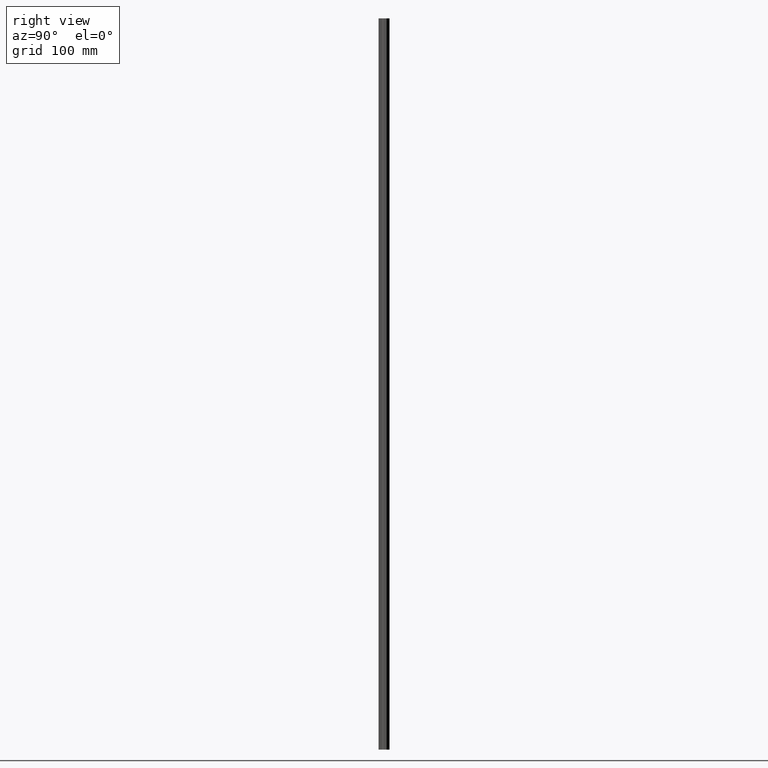
[diagram: clean part render]
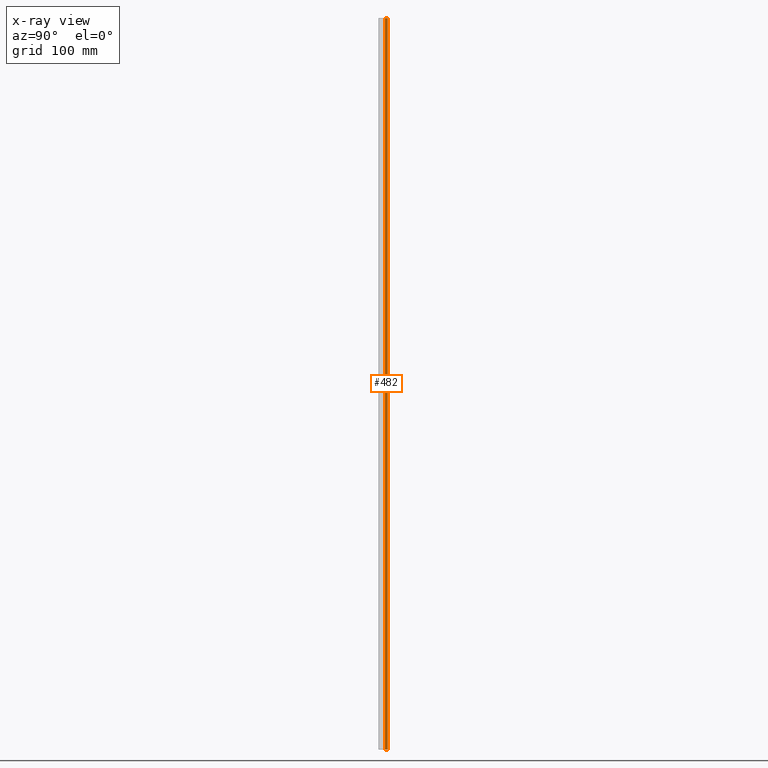
[diagram: x-ray — body ghosted, one internal face saturated and labeled with its STEP entity id]
A machine part, right view, then the same camera in x-ray: the body is ghosted and one INTERNAL B-rep face — a face not visible from any outside direction — is saturated and labeled: STEP entity #482.
In plain terms, the highlighted planar face has unit normal (-1, 0, 0).
Its self-contained STEP definition (entity closure, byte-faithful):
#7 = CARTESIAN_POINT ( 'NONE',  ( 3.850000000000000100, 12.78999999999999900, 0.0000000000000000000 ) ) ;
#45 = CARTESIAN_POINT ( 'NONE',  ( 3.850000000000000100, 9.000000000000001800, -1000.000000000000000 ) ) ;
#110 = ORIENTED_EDGE ( 'NONE', *, *, #1505, .T. ) ;
#135 = DIRECTION ( 'NONE',  ( 0.0000000000000000000, -1.000000000000000000, -0.0000000000000000000 ) ) ;
#219 = VERTEX_POINT ( 'NONE', #7 ) ;
#229 = AXIS2_PLACEMENT_3D ( 'NONE', #1383, #1502, #1654 ) ;
#397 = EDGE_LOOP ( 'NONE', ( #1384, #110, #1499, #1715 ) ) ;
#453 = VECTOR ( 'NONE', #1159, 1000.000000000000000 ) ;
#482 = ADVANCED_FACE ( 'NONE', ( #1074 ), #1805, .T. ) ;
#537 = DIRECTION ( 'NONE',  ( -0.0000000000000000000, -0.0000000000000000000, 1.000000000000000000 ) ) ;
#547 = VERTEX_POINT ( 'NONE', #1506 ) ;
#656 = CARTESIAN_POINT ( 'NONE',  ( 3.850000000000001000, 9.000000000000003600, -1000.000000000000000 ) ) ;
#668 = LINE ( 'NONE', #1558, #1020 ) ;
#702 = EDGE_CURVE ( 'NONE', #219, #547, #1382, .T. ) ;
#736 = EDGE_CURVE ( 'NONE', #1082, #850, #668, .T. ) ;
#850 = VERTEX_POINT ( 'NONE', #45 ) ;
#1016 = LINE ( 'NONE', #1572, #1360 ) ;
#1020 = VECTOR ( 'NONE', #135, 1000.000000000000000 ) ;
#1074 = FACE_OUTER_BOUND ( 'NONE', #397, .T. ) ;
#1082 = VERTEX_POINT ( 'NONE', #1416 ) ;
#1159 = DIRECTION ( 'NONE',  ( 0.0000000000000000000, -1.000000000000000000, -0.0000000000000000000 ) ) ;
#1199 = EDGE_CURVE ( 'NONE', #219, #1082, #1016, .T. ) ;
#1360 = VECTOR ( 'NONE', #1436, 1000.000000000000000 ) ;
#1382 = LINE ( 'NONE', #1551, #453 ) ;
#1383 = CARTESIAN_POINT ( 'NONE',  ( 3.850000000000000100, 12.78999999999999900, -1000.000000000000000 ) ) ;
#1384 = ORIENTED_EDGE ( 'NONE', *, *, #736, .T. ) ;
#1416 = CARTESIAN_POINT ( 'NONE',  ( 3.850000000000000100, 12.78999999999999900, -1000.000000000000000 ) ) ;
#1436 = DIRECTION ( 'NONE',  ( -0.0000000000000000000, -0.0000000000000000000, -1.000000000000000000 ) ) ;
#1499 = ORIENTED_EDGE ( 'NONE', *, *, #702, .F. ) ;
#1502 = DIRECTION ( 'NONE',  ( -1.000000000000000000, 0.0000000000000000000, 0.0000000000000000000 ) ) ;
#1505 = EDGE_CURVE ( 'NONE', #850, #547, #1597, .T. ) ;
#1506 = CARTESIAN_POINT ( 'NONE',  ( 3.850000000000000100, 9.000000000000001800, 0.0000000000000000000 ) ) ;
#1551 = CARTESIAN_POINT ( 'NONE',  ( 3.850000000000000100, 10.88000000000000100, 0.0000000000000000000 ) ) ;
#1558 = CARTESIAN_POINT ( 'NONE',  ( 3.850000000000000100, 10.88000000000000100, -1000.000000000000000 ) ) ;
#1572 = CARTESIAN_POINT ( 'NONE',  ( 3.850000000000000100, 12.78999999999999900, -1000.000000000000000 ) ) ;
#1597 = LINE ( 'NONE', #656, #1663 ) ;
#1654 = DIRECTION ( 'NONE',  ( 0.0000000000000000000, 0.0000000000000000000, 1.000000000000000000 ) ) ;
#1663 = VECTOR ( 'NONE', #537, 1000.000000000000000 ) ;
#1715 = ORIENTED_EDGE ( 'NONE', *, *, #1199, .T. ) ;
#1805 = PLANE ( 'NONE',  #229 ) ;